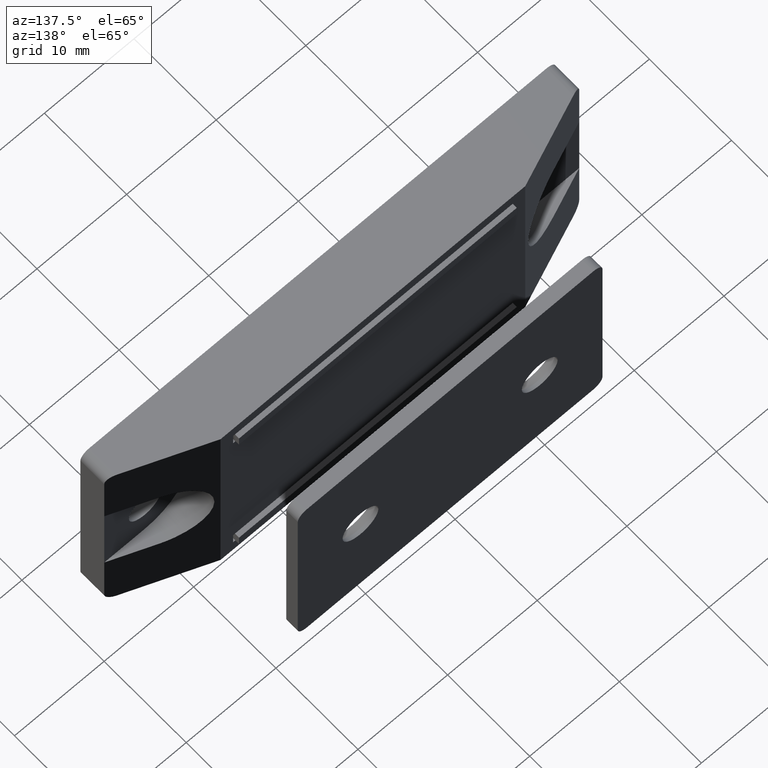
[diagram: clean part render]
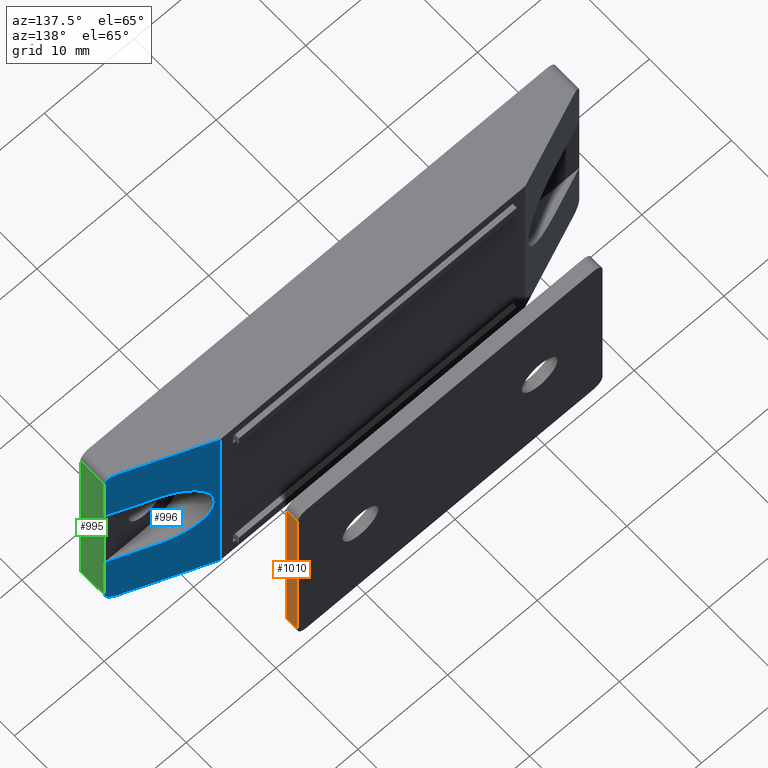
[diagram: same view with three faces highlighted in distinct colors, each labeled with its STEP entity id]
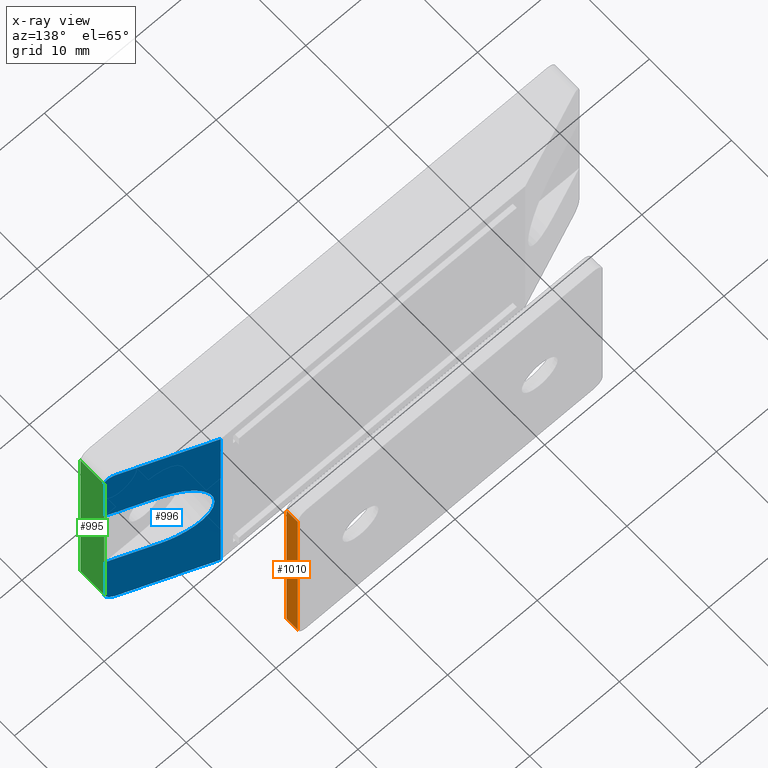
[diagram: x-ray of the same camera — body ghosted, the three highlighted faces saturated]
A machine part, auxiliary view with three faces highlighted in distinct colors.
The next image is the same camera in x-ray (body ghosted, the three faces saturated) — at least one of them is partly hidden behind the body in this view.
Their STEP definitions:

[orange] entity #1010 — the highlighted planar face has unit normal (1, -0, 0).
#86=PLANE('',#1104);
#144=FACE_OUTER_BOUND('',#216,.T.);
#216=EDGE_LOOP('',(#890,#891,#892,#893));
#300=LINE('',#1584,#402);
#305=LINE('',#1596,#407);
#309=LINE('',#1615,#411);
#315=LINE('',#1643,#417);
#402=VECTOR('',#1289,1.4);
#407=VECTOR('',#1300,21.);
#411=VECTOR('',#1318,1.4);
#417=VECTOR('',#1354,21.);
#519=VERTEX_POINT('',#1581);
#520=VERTEX_POINT('',#1583);
#524=VERTEX_POINT('',#1595);
#531=VERTEX_POINT('',#1611);
#635=EDGE_CURVE('',#519,#520,#300,.T.);
#641=EDGE_CURVE('',#520,#524,#305,.T.);
#651=EDGE_CURVE('',#524,#531,#309,.T.);
#663=EDGE_CURVE('',#531,#519,#315,.T.);
#890=ORIENTED_EDGE('',*,*,#635,.F.);
#891=ORIENTED_EDGE('',*,*,#663,.F.);
#892=ORIENTED_EDGE('',*,*,#651,.F.);
#893=ORIENTED_EDGE('',*,*,#641,.F.);
#1010=ADVANCED_FACE('',(#144),#86,.T.);
#1104=AXIS2_PLACEMENT_3D('',#1642,#1352,#1353);
#1289=DIRECTION('',(0.,0.,-1.));
#1300=DIRECTION('',(0.,-1.,0.));
#1318=DIRECTION('',(0.,0.,1.));
#1352=DIRECTION('center_axis',(1.,0.,0.));
#1353=DIRECTION('ref_axis',(0.,1.,0.));
#1354=DIRECTION('',(0.,1.,0.));
#1581=CARTESIAN_POINT('',(17.,10.5,2.));
#1583=CARTESIAN_POINT('',(17.,10.5,0.6));
#1584=CARTESIAN_POINT('',(17.,10.5,0.6));
#1595=CARTESIAN_POINT('',(17.,-10.5,0.6));
#1596=CARTESIAN_POINT('',(17.,11.5,0.6));
#1611=CARTESIAN_POINT('',(17.,-10.5,2.));
#1615=CARTESIAN_POINT('',(17.,-10.5,0.6));
#1642=CARTESIAN_POINT('Origin',(17.,-11.5,0.6));
#1643=CARTESIAN_POINT('',(17.,11.5,2.));

[blue] entity #996 — the highlighted planar face has unit normal (0.3714, 0.9285, 0).
#80=PLANE('',#1075);
#130=FACE_OUTER_BOUND('',#194,.T.);
#194=EDGE_LOOP('',(#822,#823,#824,#825,#826,#827,#828,#829,#830,#831));
#232=ELLIPSE('',#1031,1.0770329614269,1.);
#233=ELLIPSE('',#1040,1.0770329614269,1.);
#237=ELLIPSE('',#1062,4.84664832642105,4.5);
#244=LINE('',#1434,#346);
#250=LINE('',#1459,#352);
#269=LINE('',#1514,#371);
#272=LINE('',#1521,#374);
#297=LINE('',#1573,#399);
#298=LINE('',#1574,#400);
#299=LINE('',#1576,#401);
#346=VECTOR('',#1139,9.15478017212866);
#352=VECTOR('',#1163,9.15478017212866);
#371=VECTOR('',#1220,4.84664832642105);
#374=VECTOR('',#1229,4.84664832642106);
#399=VECTOR('',#1276,6.25);
#400=VECTOR('',#1277,6.25);
#401=VECTOR('',#1280,23.5);
#468=VERTEX_POINT('',#1420);
#469=VERTEX_POINT('',#1422);
#473=VERTEX_POINT('',#1432);
#481=VERTEX_POINT('',#1452);
#482=VERTEX_POINT('',#1453);
#483=VERTEX_POINT('',#1458);
#496=VERTEX_POINT('',#1504);
#497=VERTEX_POINT('',#1505);
#500=VERTEX_POINT('',#1513);
#501=VERTEX_POINT('',#1517);
#558=EDGE_CURVE('',#468,#469,#232,.T.);
#564=EDGE_CURVE('',#473,#468,#244,.T.);
#573=EDGE_CURVE('',#481,#482,#233,.T.);
#576=EDGE_CURVE('',#482,#483,#250,.T.);
#602=EDGE_CURVE('',#496,#500,#269,.T.);
#604=EDGE_CURVE('',#500,#501,#237,.T.);
#606=EDGE_CURVE('',#501,#497,#272,.T.);
#631=EDGE_CURVE('',#497,#469,#297,.T.);
#632=EDGE_CURVE('',#481,#496,#298,.T.);
#633=EDGE_CURVE('',#483,#473,#299,.T.);
#822=ORIENTED_EDGE('',*,*,#558,.F.);
#823=ORIENTED_EDGE('',*,*,#564,.F.);
#824=ORIENTED_EDGE('',*,*,#633,.F.);
#825=ORIENTED_EDGE('',*,*,#576,.F.);
#826=ORIENTED_EDGE('',*,*,#573,.F.);
#827=ORIENTED_EDGE('',*,*,#632,.T.);
#828=ORIENTED_EDGE('',*,*,#602,.T.);
#829=ORIENTED_EDGE('',*,*,#604,.T.);
#830=ORIENTED_EDGE('',*,*,#606,.T.);
#831=ORIENTED_EDGE('',*,*,#631,.T.);
#996=ADVANCED_FACE('',(#130),#80,.T.);
#1031=AXIS2_PLACEMENT_3D('',#1423,#1130,#1131);
#1040=AXIS2_PLACEMENT_3D('',#1454,#1157,#1158);
#1062=AXIS2_PLACEMENT_3D('',#1518,#1224,#1225);
#1075=AXIS2_PLACEMENT_3D('',#1575,#1278,#1279);
#1130=DIRECTION('center_axis',(-0.371390676354104,0.,-0.928476690885259));
#1131=DIRECTION('ref_axis',(0.928476690885259,-1.28852025006074E-16,-0.371390676354104));
#1139=DIRECTION('',(0.928476690885259,0.,-0.371390676354104));
#1157=DIRECTION('center_axis',(-0.371390676354104,0.,-0.928476690885259));
#1158=DIRECTION('ref_axis',(0.928476690885259,1.28852025006074E-16,-0.371390676354104));
#1163=DIRECTION('',(-0.928476690885259,0.,0.371390676354104));
#1220=DIRECTION('',(-0.928476690885259,-6.4426008902953E-17,0.371390676354104));
#1224=DIRECTION('center_axis',(-0.371390676354104,0.,-0.928476690885259));
#1225=DIRECTION('ref_axis',(0.928476690885259,0.,-0.371390676354104));
#1229=DIRECTION('',(0.928476690885259,-6.4426008902953E-17,-0.371390676354104));
#1276=DIRECTION('',(0.,1.,0.));
#1277=DIRECTION('',(0.,1.,0.));
#1278=DIRECTION('center_axis',(0.371390676354104,0.,0.928476690885259));
#1279=DIRECTION('ref_axis',(0.928476690885259,0.,-0.371390676354105));
#1280=DIRECTION('',(0.,1.,0.));
#1420=CARTESIAN_POINT('',(25.5,11.75,-3.4));
#1422=CARTESIAN_POINT('',(26.5,10.75,-3.8));
#1423=CARTESIAN_POINT('Origin',(25.5,10.75,-3.4));
#1432=CARTESIAN_POINT('',(17.,11.75,0.));
#1434=CARTESIAN_POINT('',(17.,11.75,0.));
#1452=CARTESIAN_POINT('',(26.5,-10.75,-3.8));
#1453=CARTESIAN_POINT('',(25.5,-11.75,-3.4));
#1454=CARTESIAN_POINT('Origin',(25.5,-10.75,-3.4));
#1458=CARTESIAN_POINT('',(17.,-11.75,0.));
#1459=CARTESIAN_POINT('',(17.,-11.75,0.));
#1504=CARTESIAN_POINT('',(26.5,-4.5,-3.8));
#1505=CARTESIAN_POINT('',(26.5,4.5,-3.8));
#1513=CARTESIAN_POINT('',(22.,-4.5,-2.));
#1514=CARTESIAN_POINT('',(22.6034484685495,-4.5,-2.2413793874198));
#1517=CARTESIAN_POINT('',(22.,4.5,-2.));
#1518=CARTESIAN_POINT('Origin',(22.,0.,-2.));
#1521=CARTESIAN_POINT('',(19.1551724137931,4.5,-0.862068965517242));
#1573=CARTESIAN_POINT('',(26.5,0.,-3.8));
#1574=CARTESIAN_POINT('',(26.5,0.,-3.8));
#1575=CARTESIAN_POINT('Origin',(17.,0.,0.));
#1576=CARTESIAN_POINT('',(17.,0.,0.));

[green] entity #995 — the highlighted planar face has unit normal (1, 0, 0).
#79=PLANE('',#1074);
#129=FACE_OUTER_BOUND('',#193,.T.);
#193=EDGE_LOOP('',(#816,#817,#818,#819,#820,#821));
#239=LINE('',#1424,#341);
#245=LINE('',#1437,#347);
#249=LINE('',#1456,#351);
#266=LINE('',#1506,#368);
#297=LINE('',#1573,#399);
#298=LINE('',#1574,#400);
#341=VECTOR('',#1132,2.9);
#347=VECTOR('',#1142,21.5);
#351=VECTOR('',#1160,2.9);
#368=VECTOR('',#1213,9.);
#399=VECTOR('',#1276,6.25);
#400=VECTOR('',#1277,6.25);
#466=VERTEX_POINT('',#1417);
#469=VERTEX_POINT('',#1422);
#474=VERTEX_POINT('',#1436);
#481=VERTEX_POINT('',#1452);
#496=VERTEX_POINT('',#1504);
#497=VERTEX_POINT('',#1505);
#559=EDGE_CURVE('',#469,#466,#239,.T.);
#565=EDGE_CURVE('',#474,#466,#245,.T.);
#575=EDGE_CURVE('',#474,#481,#249,.T.);
#598=EDGE_CURVE('',#496,#497,#266,.T.);
#631=EDGE_CURVE('',#497,#469,#297,.T.);
#632=EDGE_CURVE('',#481,#496,#298,.T.);
#816=ORIENTED_EDGE('',*,*,#559,.F.);
#817=ORIENTED_EDGE('',*,*,#631,.F.);
#818=ORIENTED_EDGE('',*,*,#598,.F.);
#819=ORIENTED_EDGE('',*,*,#632,.F.);
#820=ORIENTED_EDGE('',*,*,#575,.F.);
#821=ORIENTED_EDGE('',*,*,#565,.T.);
#995=ADVANCED_FACE('',(#129),#79,.T.);
#1074=AXIS2_PLACEMENT_3D('',#1572,#1274,#1275);
#1132=DIRECTION('',(0.,0.,-1.));
#1142=DIRECTION('',(0.,1.,0.));
#1160=DIRECTION('',(0.,0.,1.));
#1213=DIRECTION('',(0.,1.,0.));
#1274=DIRECTION('center_axis',(1.,0.,0.));
#1275=DIRECTION('ref_axis',(0.,0.,-1.));
#1276=DIRECTION('',(0.,1.,0.));
#1277=DIRECTION('',(0.,1.,0.));
#1417=CARTESIAN_POINT('',(26.5,10.75,-6.7));
#1422=CARTESIAN_POINT('',(26.5,10.75,-3.8));
#1424=CARTESIAN_POINT('',(26.5,10.75,-3.575));
#1436=CARTESIAN_POINT('',(26.5,-10.75,-6.7));
#1437=CARTESIAN_POINT('',(26.5,0.,-6.7));
#1452=CARTESIAN_POINT('',(26.5,-10.75,-3.8));
#1456=CARTESIAN_POINT('',(26.5,-10.75,-3.575));
#1504=CARTESIAN_POINT('',(26.5,-4.5,-3.8));
#1505=CARTESIAN_POINT('',(26.5,4.5,-3.8));
#1506=CARTESIAN_POINT('',(26.5,0.,-3.8));
#1572=CARTESIAN_POINT('Origin',(26.5,0.,-3.8));
#1573=CARTESIAN_POINT('',(26.5,0.,-3.8));
#1574=CARTESIAN_POINT('',(26.5,0.,-3.8));